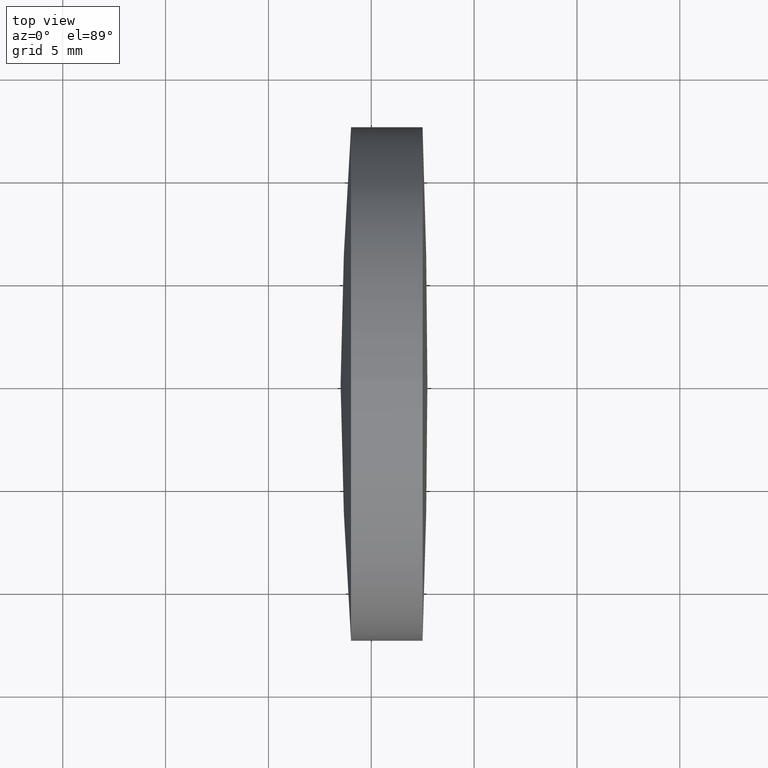
[diagram: clean part render]
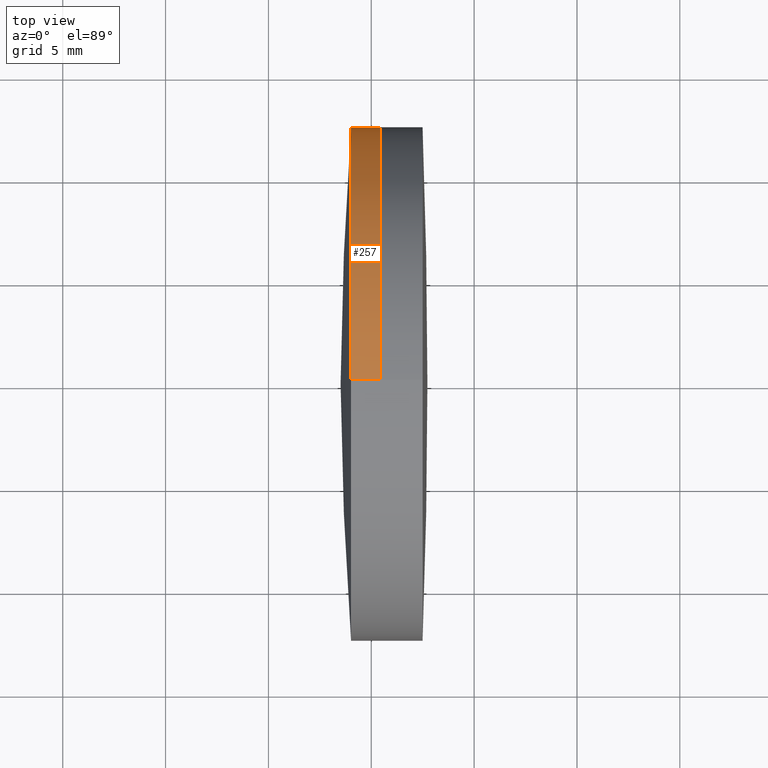
[diagram: same view with one face highlighted and labeled with its STEP entity id]
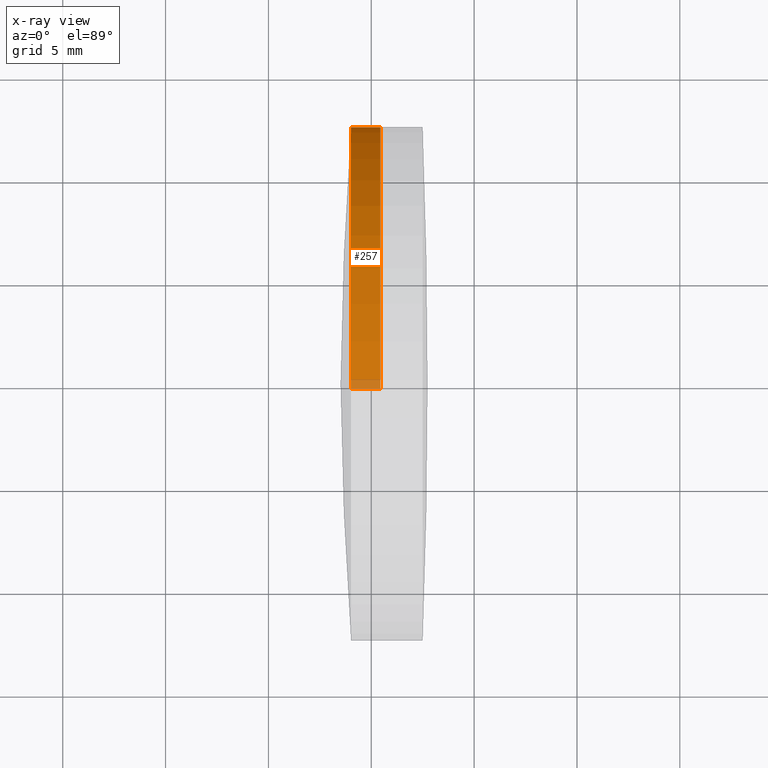
[diagram: x-ray of the same camera — body ghosted, the highlighted face saturated]
A machine part, top view. The second image highlights one B-rep face of the part: STEP entity #257.
The next image is the same camera in x-ray: the body ghosted, the highlighted face saturated — about 3% of this face is hidden behind the body in this view.
In plain terms, the highlighted cylindrical surface (partial cylindrical patch) has radius 12.5 mm, axis along (-1, -0, -0).
Its self-contained STEP definition (entity closure, byte-faithful):
#2 = CARTESIAN_POINT ( 'NONE',  ( 115.4447867878546700, 1.530808498934191500E-015, -12.50000000000000000 ) ) ;
#3 = ORIENTED_EDGE ( 'NONE', *, *, #121, .F. ) ;
#7 = CARTESIAN_POINT ( 'NONE',  ( -9.702612178336682500, 1.530808498934191500E-015, -12.50000000000000000 ) ) ;
#17 = CARTESIAN_POINT ( 'NONE',  ( 115.4447867878546700, 0.0000000000000000000, 0.0000000000000000000 ) ) ;
#25 = AXIS2_PLACEMENT_3D ( 'NONE', #17, #265, #274 ) ;
#29 = CIRCLE ( 'NONE', #25, 12.50000000000000000 ) ;
#67 = CYLINDRICAL_SURFACE ( 'NONE', #84, 12.50000000000000000 ) ;
#68 = VERTEX_POINT ( 'NONE', #2 ) ;
#78 = DIRECTION ( 'NONE',  ( -1.000000000000000000, -0.0000000000000000000, -0.0000000000000000000 ) ) ;
#84 = AXIS2_PLACEMENT_3D ( 'NONE', #219, #331, #100 ) ;
#100 = DIRECTION ( 'NONE',  ( 0.0000000000000000000, 0.0000000000000000000, 1.000000000000000000 ) ) ;
#106 = ORIENTED_EDGE ( 'NONE', *, *, #149, .F. ) ;
#120 = DIRECTION ( 'NONE',  ( -1.000000000000000000, -0.0000000000000000000, -0.0000000000000000000 ) ) ;
#121 = EDGE_CURVE ( 'NONE', #228, #343, #133, .T. ) ;
#133 = CIRCLE ( 'NONE', #317, 12.50000000000000000 ) ;
#147 = VECTOR ( 'NONE', #120, 1000.000000000000000 ) ;
#149 = EDGE_CURVE ( 'NONE', #231, #228, #162, .T. ) ;
#162 = LINE ( 'NONE', #304, #147 ) ;
#167 = DIRECTION ( 'NONE',  ( -1.000000000000000000, -0.0000000000000000000, -0.0000000000000000000 ) ) ;
#177 = EDGE_CURVE ( 'NONE', #231, #68, #29, .T. ) ;
#186 = CARTESIAN_POINT ( 'NONE',  ( 114.0173692960632100, 1.530808498934200400E-015, -12.50000000000007300 ) ) ;
#195 = LINE ( 'NONE', #7, #209 ) ;
#203 = ORIENTED_EDGE ( 'NONE', *, *, #208, .T. ) ;
#208 = EDGE_CURVE ( 'NONE', #68, #343, #195, .T. ) ;
#209 = VECTOR ( 'NONE', #167, 1000.000000000000000 ) ;
#219 = CARTESIAN_POINT ( 'NONE',  ( -9.702612178336682500, 0.0000000000000000000, 0.0000000000000000000 ) ) ;
#220 = CARTESIAN_POINT ( 'NONE',  ( 114.0173692960632100, 0.0000000000000000000, 0.0000000000000000000 ) ) ;
#228 = VERTEX_POINT ( 'NONE', #269 ) ;
#231 = VERTEX_POINT ( 'NONE', #335 ) ;
#257 = ADVANCED_FACE ( 'NONE', ( #319 ), #67, .T. ) ;
#265 = DIRECTION ( 'NONE',  ( -1.000000000000000000, -0.0000000000000000000, -0.0000000000000000000 ) ) ;
#269 = CARTESIAN_POINT ( 'NONE',  ( 114.0173692960632100, 0.0000000000000000000, 12.50000000000007300 ) ) ;
#274 = DIRECTION ( 'NONE',  ( 0.0000000000000000000, 0.0000000000000000000, 1.000000000000000000 ) ) ;
#275 = DIRECTION ( 'NONE',  ( 0.0000000000000000000, 0.0000000000000000000, 1.000000000000000000 ) ) ;
#285 = EDGE_LOOP ( 'NONE', ( #309, #203, #3, #106 ) ) ;
#304 = CARTESIAN_POINT ( 'NONE',  ( -9.702612178336682500, 0.0000000000000000000, 12.50000000000000000 ) ) ;
#309 = ORIENTED_EDGE ( 'NONE', *, *, #177, .T. ) ;
#317 = AXIS2_PLACEMENT_3D ( 'NONE', #220, #78, #275 ) ;
#319 = FACE_OUTER_BOUND ( 'NONE', #285, .T. ) ;
#331 = DIRECTION ( 'NONE',  ( -1.000000000000000000, -0.0000000000000000000, -0.0000000000000000000 ) ) ;
#335 = CARTESIAN_POINT ( 'NONE',  ( 115.4447867878546700, 0.0000000000000000000, 12.50000000000000000 ) ) ;
#343 = VERTEX_POINT ( 'NONE', #186 ) ;